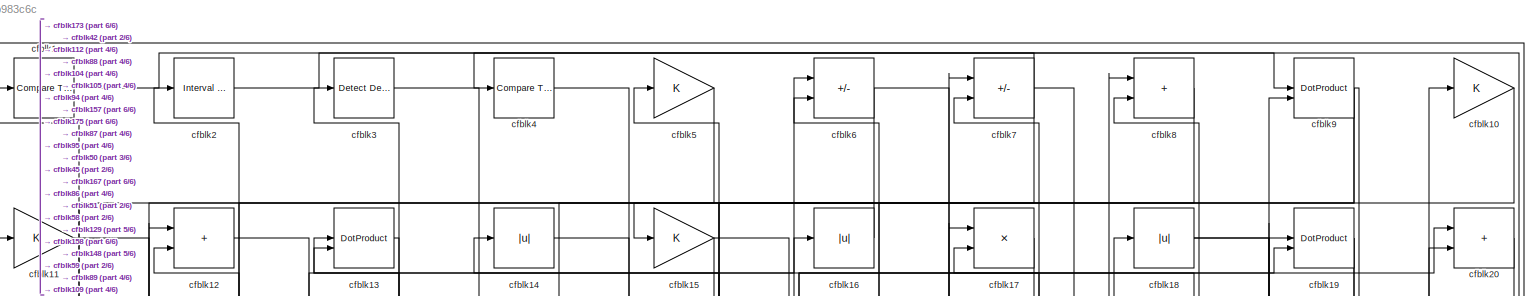
[diagram: root canvas - part 1/6, full width, top band]
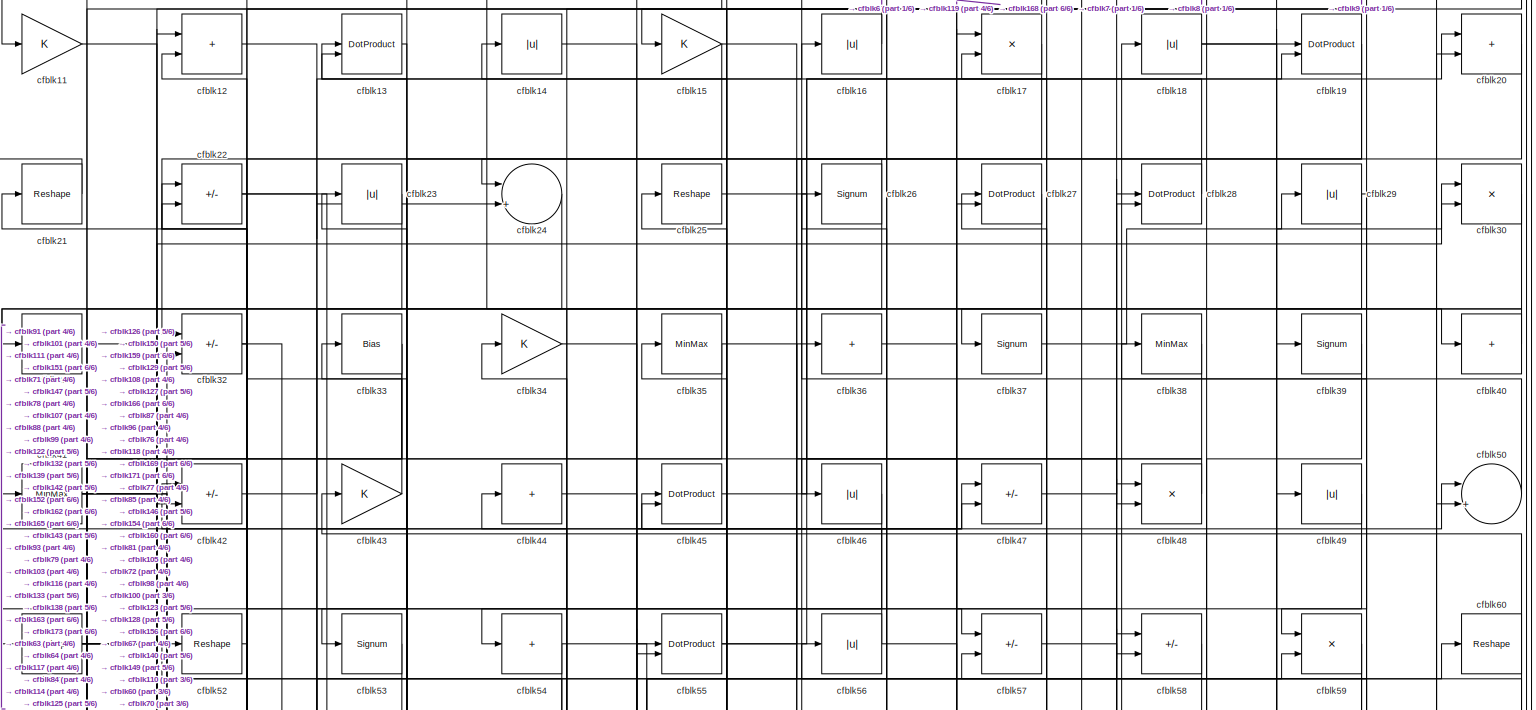
[diagram: root canvas - part 2/6, full width, top band]
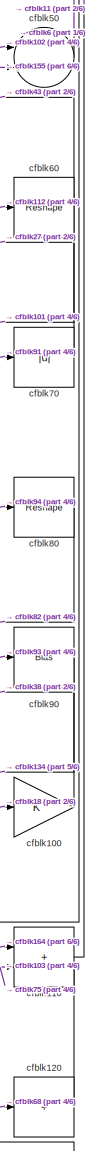
[diagram: root canvas - part 3/6, middle right region]
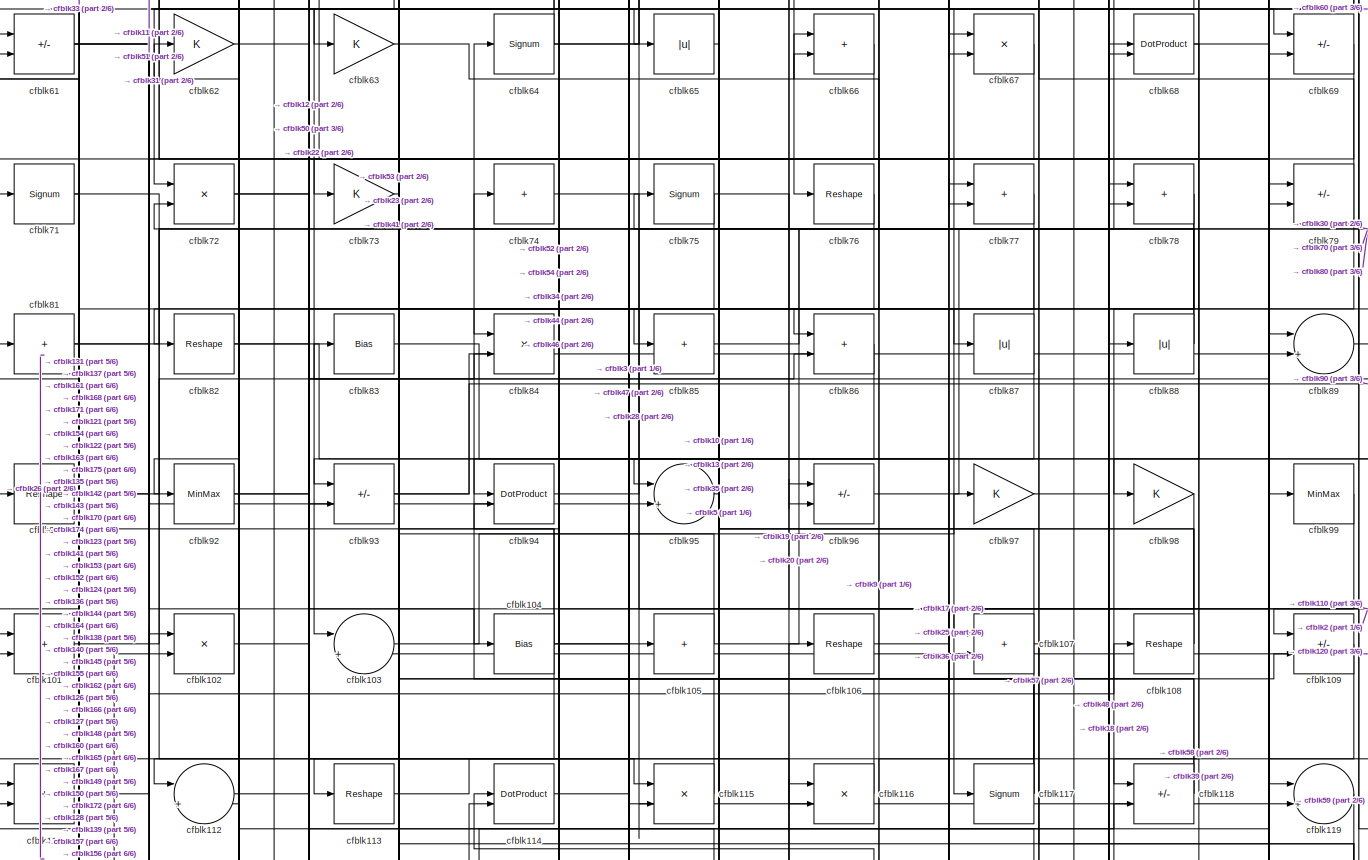
[diagram: root canvas - part 4/6, full width, middle band]
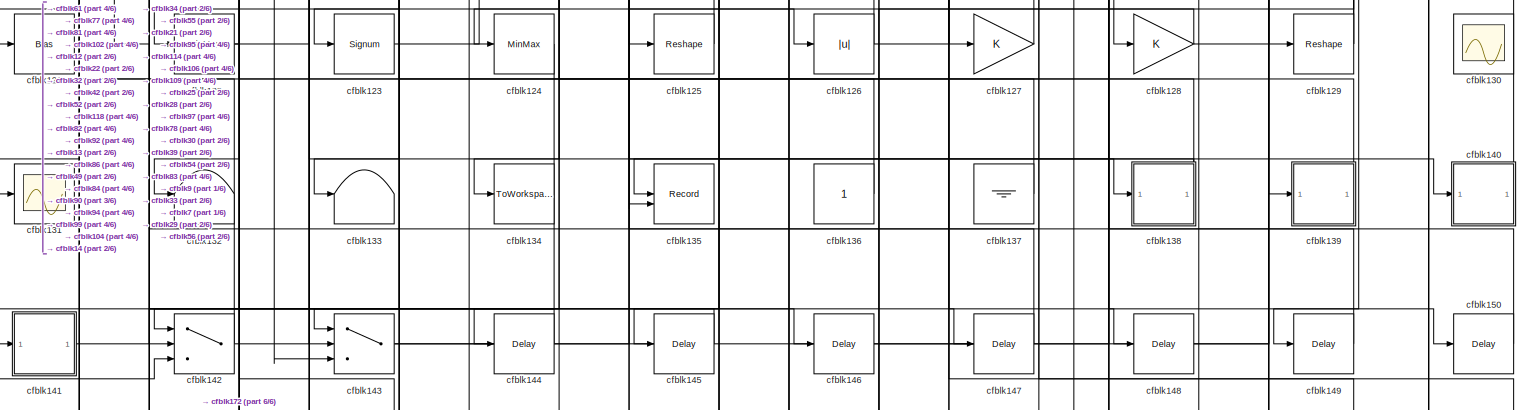
[diagram: root canvas - part 5/6, full width, bottom band]
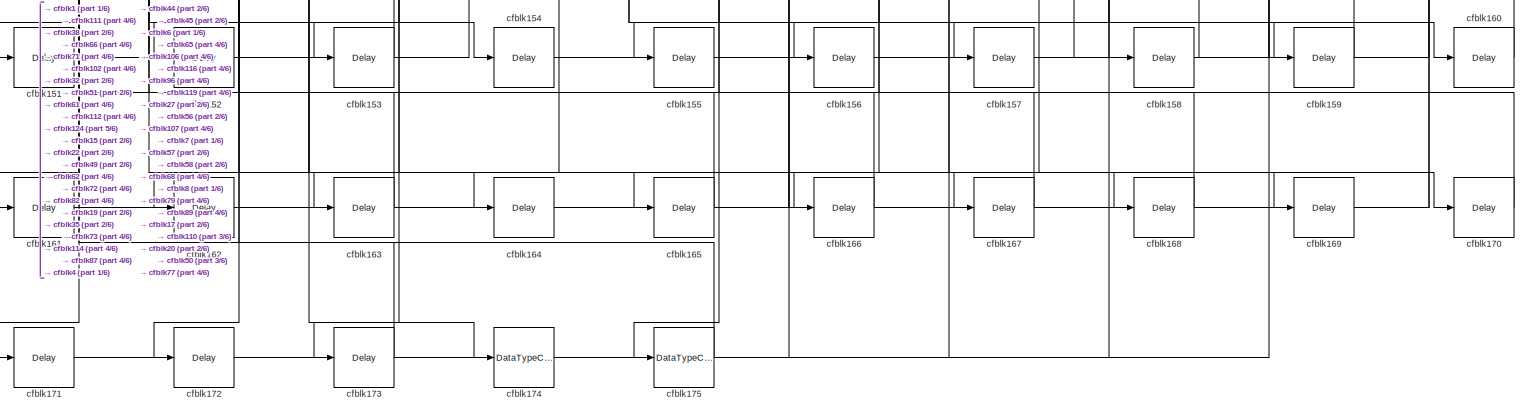
[diagram: root canvas - part 6/6, full width, bottom band]
MODEL slx_61a6bb983c6c
KIND model
CONFIG AbsTol = auto
CONFIG EnableMultiTasking = off
CONFIG FixedStep = auto
CONFIG MaxStep = auto
CONFIG MinStep = auto
CONFIG RelTol = 1e-3
CONFIG SampleTimeConstraint = Unconstrained
CONFIG SolverName = VariableStepAuto
CONFIG StartTime = 0.0
CONFIG StopTime = 10.0
BLOCK [Reference] cfblk1  REF=hdlsllib/Logic and Bit
Operations/Compare
To Zero
  SourceBlock = hdlsllib/Logic and Bit\nOperations/Compare\nTo Zero
  SourceType = Compare To Zero
BLOCK [Gain] cfblk10
BLOCK [Gain] cfblk100
BLOCK [Sum] cfblk101
  IconShape = rectangular
BLOCK [Product] cfblk102
  Inputs = */
  RndMeth = Zero
  SaturateOnIntegerOverflow = on
BLOCK [Sum] cfblk103
  Inputs = |++
BLOCK [Bias] cfblk104
  Bias = 0.0
  SaturateOnIntegerOverflow = off
BLOCK [Sum] cfblk105
  IconShape = rectangular
  Inputs = +
BLOCK [Reshape] cfblk106
BLOCK [Sum] cfblk107
  IconShape = rectangular
BLOCK [Reshape] cfblk108
BLOCK [Sum] cfblk109
  IconShape = rectangular
  Inputs = +-
BLOCK [Gain] cfblk11
BLOCK [Sum] cfblk110
  IconShape = rectangular
BLOCK [Sum] cfblk111
  IconShape = rectangular
BLOCK [Sum] cfblk112
  Inputs = |++
BLOCK [Reshape] cfblk113
BLOCK [DotProduct] cfblk114
  OutDataTypeStr = Inherit: Inherit via internal rule
BLOCK [Product] cfblk115
  Inputs = */
  RndMeth = Zero
  SaturateOnIntegerOverflow = on
BLOCK [Product] cfblk116
  Inputs = */
  RndMeth = Zero
  SaturateOnIntegerOverflow = on
BLOCK [Signum] cfblk117
BLOCK [Sum] cfblk118
  IconShape = rectangular
  Inputs = +-
BLOCK [Sum] cfblk119
  Inputs = |++
BLOCK [Sum] cfblk12
  IconShape = rectangular
BLOCK [Sum] cfblk120
  IconShape = rectangular
  Inputs = +
BLOCK [Bias] cfblk121
  Bias = 0.0
  SaturateOnIntegerOverflow = off
BLOCK [MinMax] cfblk122
BLOCK [Signum] cfblk123
BLOCK [MinMax] cfblk124
BLOCK [Reshape] cfblk125
BLOCK [Abs] cfblk126
  SaturateOnIntegerOverflow = off
BLOCK [Gain] cfblk127
BLOCK [Gain] cfblk128
BLOCK [Reshape] cfblk129
BLOCK [DotProduct] cfblk13
  OutDataTypeStr = Inherit: Inherit via internal rule
BLOCK [Scope] cfblk130
  Floating = on
  NumInputPorts = 1
  ScopeSpecificationString = Simulink.scopes.TimeScopeBlockCfg('CurrentConfiguration', extmgr.ConfigurationSet(extmgr.Configuration('Core','General UI',true,'FigureColor',[0.156862745098039 0.156862745098039 0.156862745098039]),extmgr.Configuration('Core','Source UI',true),extmgr.Configuration('Sources','WiredSimulink',true,'DataLoggingVariableName','ScopeData1','DataLoggingSaveFormat','StructureWithTime','DataLoggingLimitDat...<+2713ch>
BLOCK [Scope] cfblk131
  Floating = off
  NumInputPorts = 1
  ScopeSpecificationString = Simulink.scopes.TimeScopeBlockCfg('CurrentConfiguration', extmgr.ConfigurationSet(extmgr.Configuration('Core','General UI',true),extmgr.Configuration('Core','Source UI',true),extmgr.Configuration('Sources','WiredSimulink',true,'DataLoggingVariableName','ScopeData2','DataLoggingSaveFormat','Array','DataLoggingLimitDataPoints',true,'DataLoggingDecimation','1'),extmgr.Configuration('Visuals','Time Do...<+868ch>
BLOCK [Terminator] cfblk132
BLOCK [Terminator] cfblk133
BLOCK [ToWorkspace] cfblk134
  MaxDataPoints = inf
  SampleTime = -1
  SaveFormat = Timeseries
  VariableName = simout
BLOCK [Record] cfblk135
  CompatibilityTag = XY
  FileSettingsInternal = {"entries":[{"content":{"excelSettings":{"content":{},"type":"Streamout.ExcelSettings"}},"type":"Streamout.FileSettingStorage","uuid":""}],"packageUris":["http:\/\/schema.mathworks.com\/mf0\/streamout_blocks\/R2020a"],"version":"1.0"}
  Layout = [1 1]
  SignalsInternal = {"entries":[{"content":{"signals":[{"content":{"blockPath":[],"dimensions":[1],"domain":"","lineColor":"#a2142f","plots":[1],"port":1,"sid":[""],"signalID":5015,"signalName":"cfblk138"},"type":"RecordBlkView.Signal","uuid":""},{"content":{"blockPath":[],"dimensions":[1],"domain":"","lineColor":"#139fff","plots":[1],"port":2,"sid":[""],"signalID":5019,"signalName":"cfblk92"},"type":"RecordBlkView.S...<+163ch>
  VisualizationBindings = {"xyplotplugin":{"info":[{"series":[{"bindingParametersList":[{"parameter":"X-Axis","signalID":5015,"signalName":"cfblk138"},{"parameter":"Y-Axis","signalID":5019,"signalName":"cfblk92"}],"seriesID":32302}],"subplotID":1}]}}
  st = -1
BLOCK [Constant] cfblk136
  SampleTime = -1
BLOCK [Ground] cfblk137
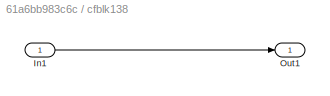
BLOCK [SubSystem] cfblk138
  LibrarySourceBlock = hdlsllib/Ports &\nSubsystems/Subsystem
BLOCK [Inport] cfblk138/In1
BLOCK [Outport] cfblk138/Out1
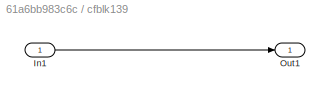
BLOCK [SubSystem] cfblk139
  LibrarySourceBlock = hdlsllib/Ports &\nSubsystems/Subsystem
BLOCK [Inport] cfblk139/In1
BLOCK [Outport] cfblk139/Out1
BLOCK [Abs] cfblk14
  SaturateOnIntegerOverflow = off
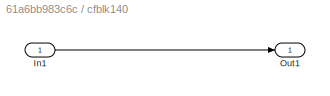
BLOCK [SubSystem] cfblk140
  LibrarySourceBlock = hdlsllib/Ports &\nSubsystems/Subsystem
BLOCK [Inport] cfblk140/In1
BLOCK [Outport] cfblk140/Out1
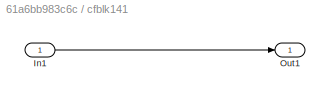
BLOCK [SubSystem] cfblk141
  LibrarySourceBlock = hdlsllib/Ports &\nSubsystems/Subsystem
BLOCK [Inport] cfblk141/In1
BLOCK [Outport] cfblk141/Out1
BLOCK [Switch] cfblk142
  InputSameDT = off
  SaturateOnIntegerOverflow = off
BLOCK [Switch] cfblk143
  InputSameDT = off
  SaturateOnIntegerOverflow = off
BLOCK [Delay] cfblk144
  InputPortMap = u0
  SampleTime = 1
BLOCK [Delay] cfblk145
  InputPortMap = u0
  SampleTime = 1
BLOCK [Delay] cfblk146
  InputPortMap = u0
  SampleTime = 1
BLOCK [Delay] cfblk147
  InputPortMap = u0
  SampleTime = 1
BLOCK [Delay] cfblk148
  InputPortMap = u0
  SampleTime = 1
BLOCK [Delay] cfblk149
  InputPortMap = u0
  SampleTime = 1
BLOCK [Gain] cfblk15
BLOCK [Delay] cfblk150
  InputPortMap = u0
  SampleTime = 1
BLOCK [Delay] cfblk151
  InputPortMap = u0
  SampleTime = 1
BLOCK [Delay] cfblk152
  InputPortMap = u0
  SampleTime = 1
BLOCK [Delay] cfblk153
  InputPortMap = u0
  SampleTime = 1
BLOCK [Delay] cfblk154
  InputPortMap = u0
  SampleTime = 1
BLOCK [Delay] cfblk155
  InputPortMap = u0
  SampleTime = 1
BLOCK [Delay] cfblk156
  InputPortMap = u0
  SampleTime = 1
BLOCK [Delay] cfblk157
  InputPortMap = u0
  SampleTime = 1
BLOCK [Delay] cfblk158
  InputPortMap = u0
  SampleTime = 1
BLOCK [Delay] cfblk159
  InputPortMap = u0
  SampleTime = 1
BLOCK [Abs] cfblk16
  SaturateOnIntegerOverflow = off
BLOCK [Delay] cfblk160
  InputPortMap = u0
  SampleTime = 1
BLOCK [Delay] cfblk161
  InputPortMap = u0
  SampleTime = 1
BLOCK [Delay] cfblk162
  InputPortMap = u0
  SampleTime = 1
BLOCK [Delay] cfblk163
  InputPortMap = u0
  SampleTime = 1
BLOCK [Delay] cfblk164
  InputPortMap = u0
  SampleTime = 1
BLOCK [Delay] cfblk165
  InputPortMap = u0
  SampleTime = 1
BLOCK [Delay] cfblk166
  InputPortMap = u0
  SampleTime = 1
BLOCK [Delay] cfblk167
  InputPortMap = u0
  SampleTime = 1
BLOCK [Delay] cfblk168
  InputPortMap = u0
  SampleTime = 1
BLOCK [Delay] cfblk169
  InputPortMap = u0
  SampleTime = 1
BLOCK [Product] cfblk17
  Inputs = */
  RndMeth = Zero
  SaturateOnIntegerOverflow = on
BLOCK [Delay] cfblk170
  InputPortMap = u0
  SampleTime = 1
BLOCK [Delay] cfblk171
  InputPortMap = u0
  SampleTime = 1
BLOCK [Delay] cfblk172
  InputPortMap = u0
  SampleTime = 1
BLOCK [Delay] cfblk173
  InputPortMap = u0
  SampleTime = 1
BLOCK [DataTypeConversion] cfblk174
  RndMeth = Floor
  SaturateOnIntegerOverflow = off
BLOCK [DataTypeConversion] cfblk175
  OutDataTypeStr = uint8
  RndMeth = Floor
  SaturateOnIntegerOverflow = off
BLOCK [Abs] cfblk18
  SaturateOnIntegerOverflow = off
BLOCK [DotProduct] cfblk19
  OutDataTypeStr = Inherit: Inherit via internal rule
BLOCK [Reference] cfblk2  REF=hdlsllib/Logic and Bit
Operations/Interval Test
  SourceBlock = hdlsllib/Logic and Bit\nOperations/Interval Test
  SourceType = Interval Test
BLOCK [Sum] cfblk20
  IconShape = rectangular
BLOCK [Reshape] cfblk21
BLOCK [Sum] cfblk22
  IconShape = rectangular
  Inputs = +-
BLOCK [Abs] cfblk23
  SaturateOnIntegerOverflow = off
BLOCK [Sum] cfblk24
  Inputs = |++
BLOCK [Reshape] cfblk25
BLOCK [Signum] cfblk26
BLOCK [DotProduct] cfblk27
  OutDataTypeStr = Inherit: Inherit via internal rule
BLOCK [DotProduct] cfblk28
  OutDataTypeStr = Inherit: Inherit via internal rule
BLOCK [Abs] cfblk29
  SaturateOnIntegerOverflow = off
BLOCK [Reference] cfblk3  REF=simulink/Logic and Bit
Operations/Detect
Decrease
  LibrarySourceBlock = hdlsllib/Logic and Bit\nOperations/Detect\nDecrease
  SourceBlock = simulink/Logic and Bit\nOperations/Detect\nDecrease
  SourceType = Detect Decrease
BLOCK [Product] cfblk30
  Inputs = */
  RndMeth = Zero
  SaturateOnIntegerOverflow = on
BLOCK [Sum] cfblk31
  IconShape = rectangular
  Inputs = +
BLOCK [Sum] cfblk32
  IconShape = rectangular
  Inputs = +-
BLOCK [Bias] cfblk33
  Bias = 0.0
  SaturateOnIntegerOverflow = off
BLOCK [Gain] cfblk34
BLOCK [MinMax] cfblk35
BLOCK [Sum] cfblk36
  IconShape = rectangular
  Inputs = +
BLOCK [Signum] cfblk37
BLOCK [MinMax] cfblk38
BLOCK [Signum] cfblk39
BLOCK [Reference] cfblk4  REF=hdlsllib/Logic and Bit
Operations/Compare
To Constant
  SourceBlock = hdlsllib/Logic and Bit\nOperations/Compare\nTo Constant
  SourceType = Compare To Constant
BLOCK [Sum] cfblk40
  IconShape = rectangular
  Inputs = +
BLOCK [MinMax] cfblk41
BLOCK [Sum] cfblk42
  IconShape = rectangular
  Inputs = +-
BLOCK [Gain] cfblk43
BLOCK [Sum] cfblk44
  IconShape = rectangular
  Inputs = +
BLOCK [DotProduct] cfblk45
  OutDataTypeStr = Inherit: Inherit via internal rule
BLOCK [Abs] cfblk46
  SaturateOnIntegerOverflow = off
BLOCK [Sum] cfblk47
  IconShape = rectangular
  Inputs = +-
BLOCK [Product] cfblk48
  Inputs = */
  RndMeth = Zero
  SaturateOnIntegerOverflow = on
BLOCK [Abs] cfblk49
  SaturateOnIntegerOverflow = off
BLOCK [Gain] cfblk5
BLOCK [Sum] cfblk50
  Inputs = |++
BLOCK [Reshape] cfblk51
BLOCK [Reshape] cfblk52
BLOCK [Signum] cfblk53
BLOCK [Sum] cfblk54
  IconShape = rectangular
  Inputs = +
BLOCK [DotProduct] cfblk55
  OutDataTypeStr = Inherit: Inherit via internal rule
BLOCK [Abs] cfblk56
  SaturateOnIntegerOverflow = off
BLOCK [Sum] cfblk57
  IconShape = rectangular
  Inputs = +-
BLOCK [Sum] cfblk58
  IconShape = rectangular
  Inputs = +-
BLOCK [Product] cfblk59
  Inputs = */
  RndMeth = Zero
  SaturateOnIntegerOverflow = on
BLOCK [Sum] cfblk6
  IconShape = rectangular
  Inputs = +-
BLOCK [Reshape] cfblk60
BLOCK [Sum] cfblk61
  IconShape = rectangular
  Inputs = +-
BLOCK [Gain] cfblk62
BLOCK [Gain] cfblk63
BLOCK [Signum] cfblk64
BLOCK [Abs] cfblk65
  SaturateOnIntegerOverflow = off
BLOCK [Sum] cfblk66
  IconShape = rectangular
BLOCK [Product] cfblk67
  Inputs = */
  RndMeth = Zero
  SaturateOnIntegerOverflow = on
BLOCK [DotProduct] cfblk68
  OutDataTypeStr = Inherit: Inherit via internal rule
BLOCK [Sum] cfblk69
  IconShape = rectangular
  Inputs = +-
BLOCK [Sum] cfblk7
  IconShape = rectangular
  Inputs = +-
BLOCK [Abs] cfblk70
  SaturateOnIntegerOverflow = off
BLOCK [Signum] cfblk71
BLOCK [Product] cfblk72
  Inputs = */
  RndMeth = Zero
  SaturateOnIntegerOverflow = on
BLOCK [Gain] cfblk73
BLOCK [Sum] cfblk74
  IconShape = rectangular
  Inputs = +
BLOCK [Signum] cfblk75
BLOCK [Reshape] cfblk76
BLOCK [Sum] cfblk77
  IconShape = rectangular
BLOCK [Sum] cfblk78
  IconShape = rectangular
BLOCK [Sum] cfblk79
  IconShape = rectangular
  Inputs = +-
BLOCK [Sum] cfblk8
  IconShape = rectangular
BLOCK [Reshape] cfblk80
BLOCK [Sum] cfblk81
  IconShape = rectangular
  Inputs = +
BLOCK [Reshape] cfblk82
BLOCK [Bias] cfblk83
  Bias = 0.0
  SaturateOnIntegerOverflow = off
BLOCK [Product] cfblk84
  Inputs = */
  RndMeth = Zero
  SaturateOnIntegerOverflow = on
BLOCK [Sum] cfblk85
  IconShape = rectangular
  Inputs = +
BLOCK [Sum] cfblk86
  IconShape = rectangular
BLOCK [Abs] cfblk87
  SaturateOnIntegerOverflow = off
BLOCK [Abs] cfblk88
  SaturateOnIntegerOverflow = off
BLOCK [Sum] cfblk89
  Inputs = |++
BLOCK [DotProduct] cfblk9
  OutDataTypeStr = Inherit: Inherit via internal rule
BLOCK [Bias] cfblk90
  Bias = 0.0
  SaturateOnIntegerOverflow = off
BLOCK [Reshape] cfblk91
BLOCK [MinMax] cfblk92
BLOCK [Sum] cfblk93
  IconShape = rectangular
  Inputs = +-
BLOCK [DotProduct] cfblk94
  OutDataTypeStr = Inherit: Inherit via internal rule
BLOCK [Sum] cfblk95
  Inputs = |++
BLOCK [Sum] cfblk96
  IconShape = rectangular
  Inputs = +-
BLOCK [Gain] cfblk97
BLOCK [Gain] cfblk98
BLOCK [MinMax] cfblk99
LINE cfblk100:1 -> cfblk38:1
LINE cfblk101:1 -> cfblk69:2
LINE cfblk102:1 -> cfblk50:1
LINE cfblk103:1 -> cfblk97:1
NET cfblk104:1 -> cfblk131:1, cfblk138:1, cfblk140:1, cfblk3:1, cfblk61:2
NET cfblk105:1 -> cfblk18:1, cfblk83:1
LINE cfblk106:1 -> cfblk148:1
NET cfblk107:1 -> cfblk166:1, cfblk167:1, cfblk35:1
NET cfblk108:1 -> cfblk13:1, cfblk75:1
LINE cfblk109:1 -> cfblk123:1
LINE cfblk10:1 -> cfblk95:1
LINE cfblk110:1 -> cfblk11:1
LINE cfblk111:1 -> cfblk108:1
LINE cfblk112:1 -> cfblk60:1
LINE cfblk113:1 -> cfblk115:1
LINE cfblk114:1 -> cfblk47:1
LINE cfblk115:1 -> cfblk64:1
LINE cfblk116:1 -> cfblk23:1
NET cfblk117:1 -> cfblk41:1, cfblk44:1, cfblk74:1
NET cfblk118:1 -> cfblk26:1, cfblk34:1
LINE cfblk119:1 -> cfblk156:1
LINE cfblk11:1 -> cfblk78:2
LINE cfblk120:1 -> cfblk103:2
NET cfblk121:1 -> cfblk102:2, cfblk147:1
NET cfblk122:1 -> cfblk118:2, cfblk22:1
LINE cfblk123:1 -> cfblk49:1
LINE cfblk124:1 -> cfblk172:1
LINE cfblk125:1 -> cfblk21:1
NET cfblk126:1 -> cfblk109:2, cfblk114:1
LINE cfblk127:1 -> cfblk25:1
NET cfblk128:1 -> cfblk122:1, cfblk30:2
NET cfblk129:1 -> cfblk33:1, cfblk7:2
LINE cfblk12:1 -> cfblk116:2
LINE cfblk136:1 -> cfblk94:2
LINE cfblk137:1 -> cfblk61:1
LINE cfblk138/In1:1 -> cfblk138/Out1:1
NET cfblk138:1 -> cfblk135:1, cfblk13:2
LINE cfblk139/In1:1 -> cfblk139/Out1:1
LINE cfblk139:1 -> cfblk42:1
LINE cfblk13:1 -> cfblk133:1
LINE cfblk140/In1:1 -> cfblk140/Out1:1
LINE cfblk140:1 -> cfblk56:1
LINE cfblk141/In1:1 -> cfblk141/Out1:1
LINE cfblk141:1 -> cfblk146:1
NET cfblk142:1 -> cfblk81:1, cfblk86:2
NET cfblk143:1 -> cfblk39:1, cfblk55:2
LINE cfblk144:1 -> cfblk142:2
LINE cfblk145:1 -> cfblk143:1
LINE cfblk146:1 -> cfblk28:1
LINE cfblk147:1 -> cfblk12:1
LINE cfblk148:1 -> cfblk9:2
LINE cfblk149:1 -> cfblk78:1
LINE cfblk14:1 -> cfblk125:1
LINE cfblk150:1 -> cfblk55:1
LINE cfblk151:1 -> cfblk32:2
LINE cfblk152:1 -> cfblk114:2
LINE cfblk153:1 -> cfblk72:2
LINE cfblk154:1 -> cfblk58:1
LINE cfblk155:1 -> cfblk50:2
LINE cfblk156:1 -> cfblk19:1
LINE cfblk157:1 -> cfblk79:1
LINE cfblk158:1 -> cfblk8:2
LINE cfblk159:1 -> cfblk17:2
NET cfblk15:1 -> cfblk152:1, cfblk48:2
LINE cfblk160:1 -> cfblk77:1
LINE cfblk161:1 -> cfblk116:1
LINE cfblk162:1 -> cfblk96:1
LINE cfblk163:1 -> cfblk112:2
LINE cfblk164:1 -> cfblk110:1
LINE cfblk165:1 -> cfblk22:2
LINE cfblk166:1 -> cfblk45:2
LINE cfblk167:1 -> cfblk6:2
LINE cfblk168:1 -> cfblk111:2
LINE cfblk169:1 -> cfblk20:2
LINE cfblk16:1 -> cfblk15:1
LINE cfblk170:1 -> cfblk102:1
LINE cfblk171:1 -> cfblk27:2
LINE cfblk172:1 -> cfblk68:2
LINE cfblk173:1 -> cfblk1:1
NET cfblk174:1 -> cfblk106:1, cfblk89:1
LINE cfblk175:1 -> cfblk62:1
LINE cfblk17:1 -> cfblk32:1
NET cfblk18:1 -> cfblk100:1, cfblk40:1
NET cfblk19:1 -> cfblk173:1, cfblk96:2
LINE cfblk1:1 -> cfblk9:1
LINE cfblk20:1 -> cfblk76:1
LINE cfblk21:1 -> cfblk142:3
NET cfblk22:1 -> cfblk24:2, cfblk79:2
LINE cfblk23:1 -> cfblk111:1
LINE cfblk24:1 -> cfblk31:1
LINE cfblk25:1 -> cfblk67:1
NET cfblk26:1 -> cfblk24:1, cfblk91:1
LINE cfblk27:1 -> cfblk54:1
LINE cfblk28:1 -> cfblk14:1
NET cfblk29:1 -> cfblk149:1, cfblk53:1
LINE cfblk2:1 -> cfblk109:1
LINE cfblk30:1 -> cfblk93:2
LINE cfblk31:1 -> cfblk99:1
NET cfblk32:1 -> cfblk132:1, cfblk143:3
NET cfblk33:1 -> cfblk101:1, cfblk71:1
LINE cfblk34:1 -> cfblk126:1
NET cfblk35:1 -> cfblk163:1, cfblk87:1
LINE cfblk36:1 -> cfblk77:2
LINE cfblk37:1 -> cfblk29:1
LINE cfblk38:1 -> cfblk151:1
LINE cfblk39:1 -> cfblk98:1
LINE cfblk3:1 -> cfblk105:1
LINE cfblk40:1 -> cfblk37:1
NET cfblk41:1 -> cfblk107:2, cfblk57:1, cfblk88:1
LINE cfblk42:1 -> cfblk16:1
LINE cfblk43:1 -> cfblk12:2
LINE cfblk44:1 -> cfblk159:1
LINE cfblk45:1 -> cfblk8:1
LINE cfblk46:1 -> cfblk84:1
LINE cfblk47:1 -> cfblk20:1
LINE cfblk48:1 -> cfblk46:1
LINE cfblk49:1 -> cfblk162:1
LINE cfblk4:1 -> cfblk157:1
LINE cfblk50:1 -> cfblk6:1
NET cfblk51:1 -> cfblk119:1, cfblk168:1, cfblk59:2, cfblk7:1
LINE cfblk52:1 -> cfblk142:1
LINE cfblk53:1 -> cfblk103:1
NET cfblk54:1 -> cfblk129:1, cfblk63:1
NET cfblk55:1 -> cfblk19:2, cfblk47:2
NET cfblk56:1 -> cfblk169:1, cfblk45:1
LINE cfblk57:1 -> cfblk160:1
LINE cfblk58:1 -> cfblk72:1
NET cfblk59:1 -> cfblk117:1, cfblk67:2
LINE cfblk5:1 -> cfblk94:1
NET cfblk60:1 -> cfblk101:2, cfblk43:1
NET cfblk61:1 -> cfblk154:1, cfblk65:1, cfblk69:1
LINE cfblk62:1 -> cfblk174:1
LINE cfblk63:1 -> cfblk66:2
NET cfblk64:1 -> cfblk28:2, cfblk36:1, cfblk52:1
LINE cfblk65:1 -> cfblk155:1
LINE cfblk66:1 -> cfblk161:1
LINE cfblk67:1 -> cfblk93:1
NET cfblk68:1 -> cfblk118:1, cfblk120:1
LINE cfblk69:1 -> cfblk73:1
NET cfblk6:1 -> cfblk175:1, cfblk58:2
LINE cfblk70:1 -> cfblk27:1
NET cfblk71:1 -> cfblk115:2, cfblk171:1
NET cfblk72:1 -> cfblk104:1, cfblk170:1
LINE cfblk73:1 -> cfblk153:1
LINE cfblk74:1 -> cfblk119:2
NET cfblk75:1 -> cfblk110:2, cfblk92:1
LINE cfblk76:1 -> cfblk113:1
LINE cfblk77:1 -> cfblk121:1
NET cfblk78:1 -> cfblk128:1, cfblk143:2
NET cfblk79:1 -> cfblk57:2, cfblk85:1
NET cfblk7:1 -> cfblk158:1, cfblk42:2, cfblk4:1
LINE cfblk80:1 -> cfblk82:1
NET cfblk81:1 -> cfblk48:1, cfblk95:2
NET cfblk82:1 -> cfblk127:1, cfblk165:1
LINE cfblk83:1 -> cfblk139:1
LINE cfblk84:1 -> cfblk144:1
LINE cfblk85:1 -> cfblk17:1
LINE cfblk86:1 -> cfblk141:1
NET cfblk87:1 -> cfblk164:1, cfblk5:1
NET cfblk88:1 -> cfblk2:1, cfblk66:1
LINE cfblk89:1 -> cfblk10:1
LINE cfblk8:1 -> cfblk51:1
LINE cfblk90:1 -> cfblk134:1
NET cfblk91:1 -> cfblk30:1, cfblk70:1
NET cfblk92:1 -> cfblk135:2, cfblk84:2
NET cfblk93:1 -> cfblk89:2, cfblk90:1
LINE cfblk94:1 -> cfblk80:1
LINE cfblk95:1 -> cfblk145:1
LINE cfblk96:1 -> cfblk68:1
LINE cfblk97:1 -> cfblk150:1
LINE cfblk98:1 -> cfblk107:1
LINE cfblk99:1 -> cfblk124:1
NET cfblk9:1 -> cfblk112:1, cfblk59:1, cfblk86:1
note: NET lines group one-source signal fan-out (src -> all destinations, sorted); 1:1 wires keep LINE
